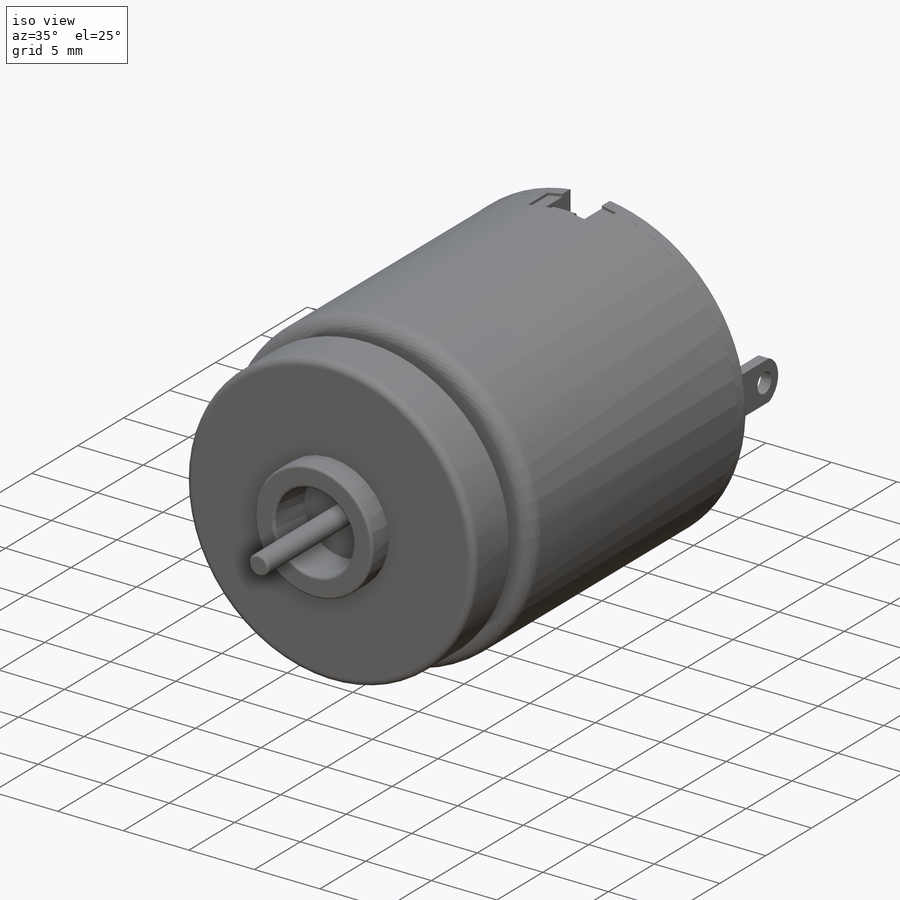
[diagram: iso view]
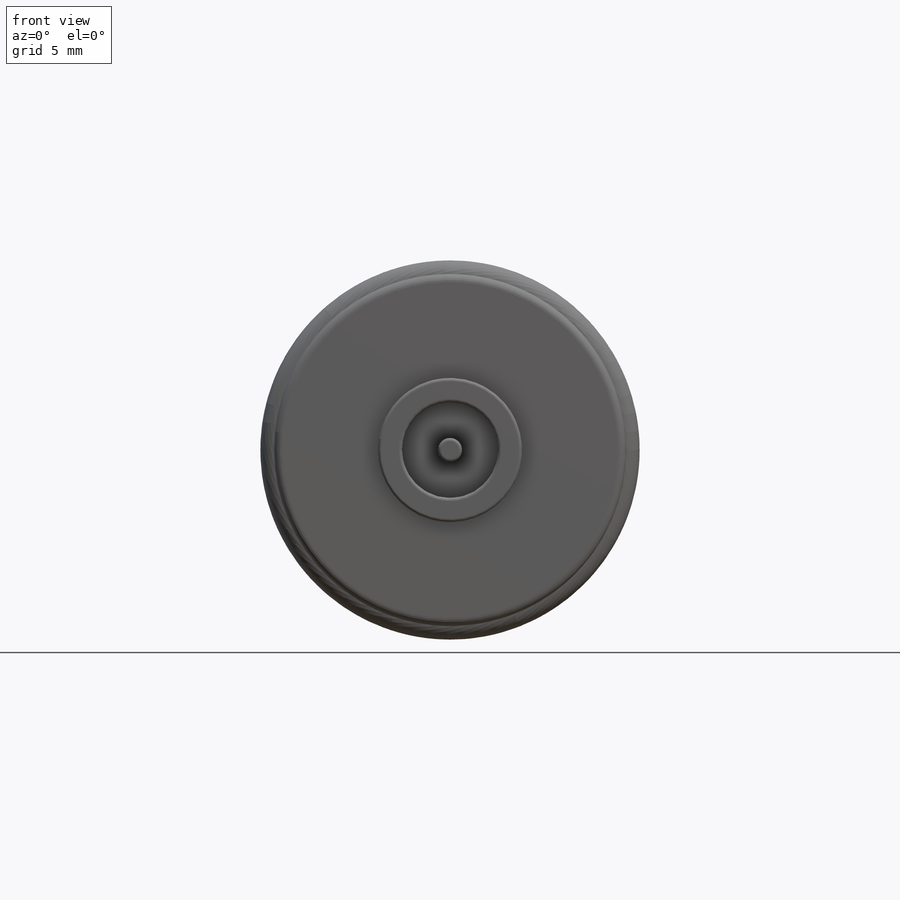
[diagram: front view]
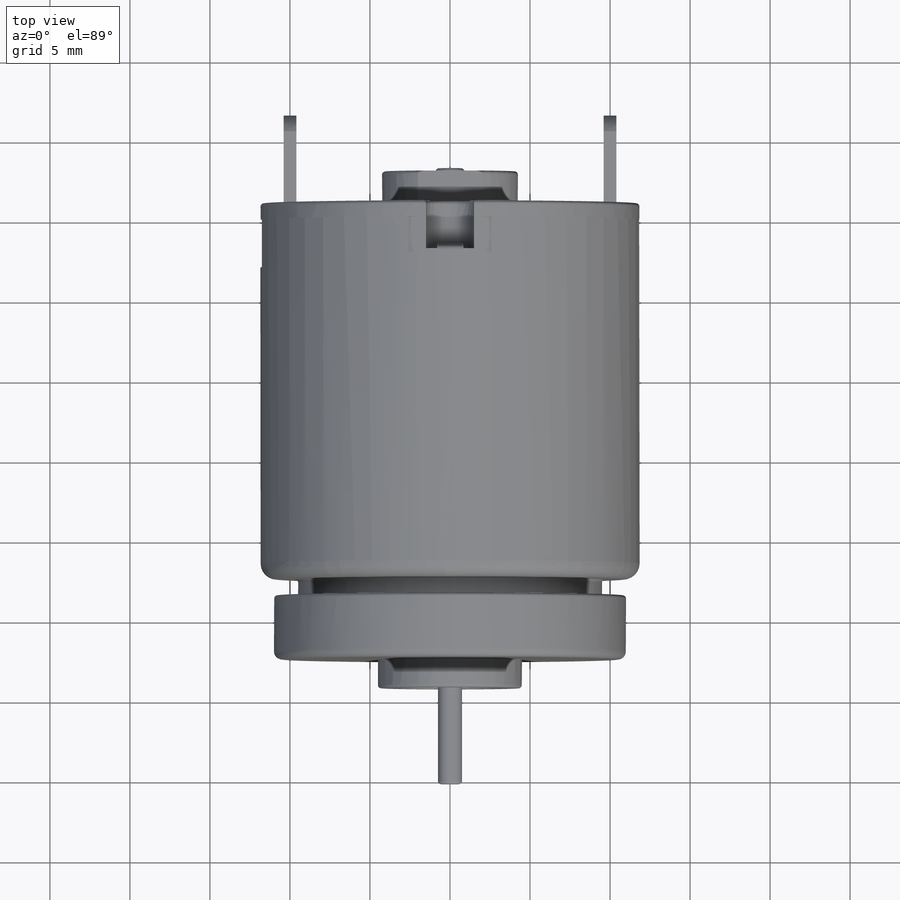
[diagram: top view]
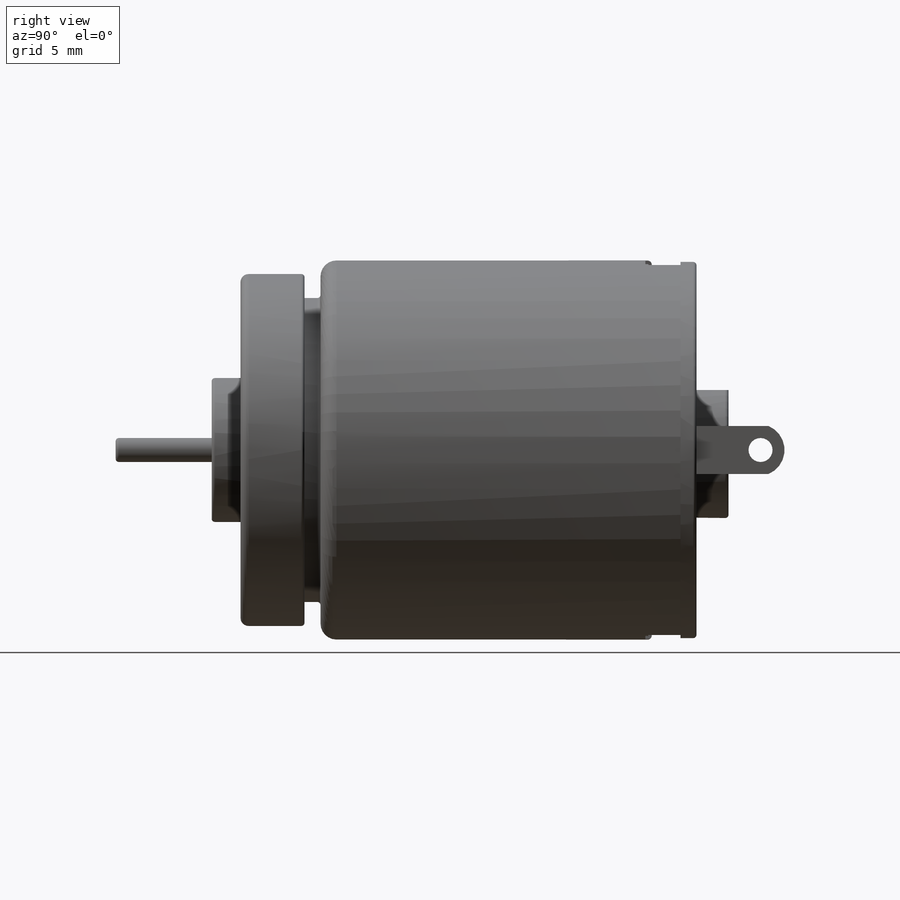
[diagram: right view]
SOLIDWORKS PART (.sldprt)
format: sldprt  version: not decoded by parser v0  size: 1,423,360 bytes
history: native  units: mm
features: sketch x17, fillet x9, extrude x8, cut_extrude x6, plane x5, material x1, revolve x1, shell x1, sweep x1, mirror x1 (+10 scaffold rows collapsed)
feature tree (60):
  scaffold x10  (default folders/planes/origin — collapsed)
  material  "材质 <未指定>"
  plane  "前视基准面"
  plane  "上视基准面"
  plane  "右视基准面"
  sketch  "草图1"  dims[D1=23.7mm]
  extrude  "凸台-拉伸1"  Depth=22.5mm
  sketch  "草图2"  dims[D1=19.0mm]
  extrude  "凸台-拉伸2"  Depth=3.5mm
  sketch  "草图3"  dims[c1.D1=11.0mm c1.D2=0.2mm c1.D3=1.0mm c1.D4=1.5mm c1.D5=4.5mm c1.D6=0.75mm c1.D7=1.8mm c2.D6=1.5mm]
  revolve  "旋转1"  Angle=360deg
  sketch  "草图4"  dims[D1=1.5mm]
  extrude  "凸台-拉伸3"  Depth=6mm
  shell  "抽壳1"  Thickness=0.5mm
  sketch  "草图5"  dims[c1.D1=~3.835518mm c1.D2=~1.993263mm c2.D1=2.2mm c2.D2=5.2mm]
  cut_extrude  "切除-拉伸1"  Depth=30mm
  plane  "基准面1"  Offset=1mm
  sketch  "草图6"  dims[D1=23.7mm]
  extrude  "凸台-拉伸4"  [1 undecoded]
  sketch  "草图7"  dims[c1.D1=~1.105454mm c1.D2=~3.283716mm c2.D1=3.0mm c2.D2=3.0mm]
  cut_extrude  "切除-拉伸2"  Depth=30mm
  sketch  "草图8"  dims[D1=0.2mm]
  extrude  "凸台-拉伸5"  [1 undecoded]
  sketch  "草图9"  dims[D1=~3.198503mm D2=3.0mm D3=23.7mm]
  cut_extrude  "切除-拉伸3"  Depth=3mm
  sketch  "草图10"  dims[c1.D1=10.5mm c1.D4=1.0mm c2.D1=23.7mm c2.D3=~6.918412mm c3.D3=30.0deg c3.D4=11.85mm c4.D3=~0.506034mm c5.D3=30.0deg c5.D2=2.5mm]
  cut_extrude  "切除-拉伸4"  Depth=1mm
  sketch  "草图11"  dims[D1=8.5mm D3=1.8mm D2=3.75mm]
  extrude  "凸台-拉伸6"  Depth=2mm
  sketch  "草图12"
  extrude  "凸台-拉伸7"  Depth=2.2mm
  sketch  "草图13"  dims[c1.D1=~3.749735mm c1.D2=~1.355326mm c2.D1=3.0mm c2.D2=0.8mm c2.D3=10.0mm c2.D4=~13.519745mm]
  extrude  "凸台-拉伸8"  Depth=5.5mm
  sketch  "草图14"  dims[c1.D1=~1.120102mm c1.D2=1.5mm c1.D4=1.5mm c2.D1=1.0mm c2.D2=1.0mm c2.D3=1.5mm]
  cut_extrude  "切除-拉伸5"  [1 undecoded]
  sketch  "草图15"  dims[D1=2.0mm D2=6.5mm D3=8.5mm]
  cut_extrude  "切除-拉伸6"  Depth=10mm
  fillet  "圆角1"  Radius=0.5mm
  fillet  "圆角2"  Radius=1mm
  fillet  "圆角3"  Radius=0.2mm
  fillet  "圆角4"  Radius=0.2mm
  fillet  "圆角5"  Radius=0.2mm
  fillet  "圆角6"  Radius=0.2mm
  fillet  "圆角7"  Radius=0.2mm
  fillet  "圆角8"  Radius=0.2mm
  fillet  "圆角9"  Radius=0.2mm
  plane  "基准面2"
  sketch  "草图18"  dims[D1=~0.199513mm D2=~0.139348mm D3=0.2mm D4=~1.496346mm D5=~0.352646mm D6=2.2mm D7=11.85mm]
  sketch  "草图17"
  sweep  "扫描4"
  mirror  "镜向1"
decode coverage: 37 of 44 modeling features carry decoded parameters
note: ~ marks probable driven/reference dimensions
note: 3 parameter values undecoded
summary: no parameter record found for 3 features
note: suppression state not decoded; provenance and decode notes live in map.json
